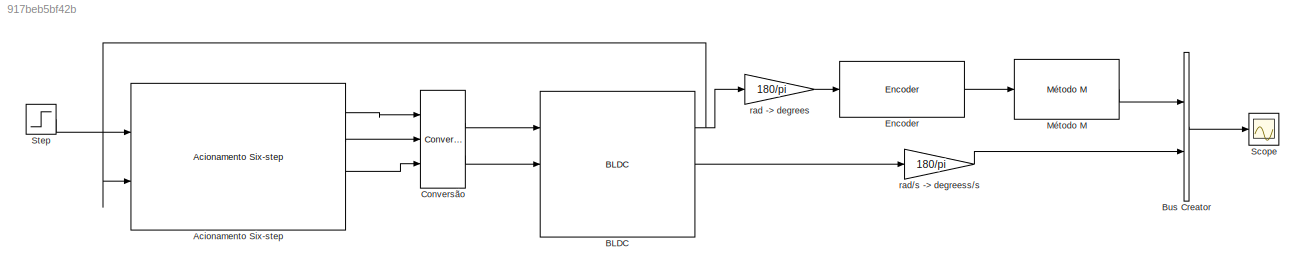
MODEL slx_917beb5bf42b
KIND model
BLOCK [Reference] Acionamento Six-step  REF=BLDC/Acionamento Six-step
  P = 8
  Ports = [2, 4]
  SourceBlock = BLDC/Acionamento Six-step
  SourceType = Acionamento six-step
BLOCK [Reference] BLDC  REF=BLDC/BLDC
  F_slip = 0
  F_stick = 0
  J = 1.39e-6
  Kd = 0
  Ke = 15.7e-3/1.19
  Kt = 15.7e-3/1.19
  L = 2.04/2000
  P = 8
  Ports = [3, 3]
  R = 10.1/2
  SourceBlock = BLDC/BLDC
  SourceType = Simulador de um motor BLDC
  default_fcem = on
  fcem_a = fcem_a
  fcem_b = fcem_b
  fcem_c = fcem_c
BLOCK [BusCreator] Bus Creator
  DisplayOption = bar
  Inputs = 2
  Ports = [2, 1]
BLOCK [Reference] Conversão  REF=BLDC/Conversão
  Ports = [3, 2]
  SourceBlock = BLDC/Conversão
  SourceType = SubSystem
BLOCK [Reference] Encoder  REF=Encoder/Encoder
  Nr = 360
  Ports = [1, 1]
  SourceBlock = Encoder/Encoder
  SourceType = Encoder de quadratura
BLOCK [Reference] Método M  REF=Encoder/Método M
  Ports = [1, 1]
  SourceBlock = Encoder/Método M
  SourceType = Método de medição de velocidade M
  Ts = 0.05
BLOCK [Scope] Scope
  DataFormat = StructureWithTime
  Floating = off
  LimitDataPoints = off
  NumInputPorts = 1
  Ports = [1]
  SampleTime = 0
  ShowLegends = off
  YMax = 45000
  YMin = 12500
BLOCK [Step] Step
  After = 0
  Before = 12
  SampleTime = 0
  Time = 0.31
BLOCK [Gain] rad -> degrees
  Gain = 180/pi
  OutDataTypeStr = Inherit: Inherit via internal rule
  ParamDataTypeStr = Inherit: Inherit via internal rule
  SaturateOnIntegerOverflow = off
BLOCK [Gain] rad//s -> degreess//s
  Gain = 180/pi
  OutDataTypeStr = Inherit: Inherit via internal rule
  ParamDataTypeStr = Inherit: Inherit via internal rule
  SaturateOnIntegerOverflow = off
LINE Acionamento Six-step:1 -> Conversão:1
LINE Acionamento Six-step:2 -> Conversão:2
LINE Acionamento Six-step:3 -> Conversão:3
NET BLDC:1 -> Acionamento Six-step:2, rad -> degrees:1
LINE BLDC:2 -> rad//s -> degreess//s:1
LINE Bus Creator:1 -> Scope:1
LINE Conversão:1 -> BLDC:1
LINE Conversão:2 -> BLDC:2
LINE Encoder:1 -> Método M:1
LINE Método M:1 -> Bus Creator:1
LINE Step:1 -> Acionamento Six-step:1
LINE rad -> degrees:1 -> Encoder:1
LINE rad//s -> degreess//s:1 -> Bus Creator:2
note: NET lines group one-source signal fan-out (src -> all destinations, sorted); 1:1 wires keep LINE
